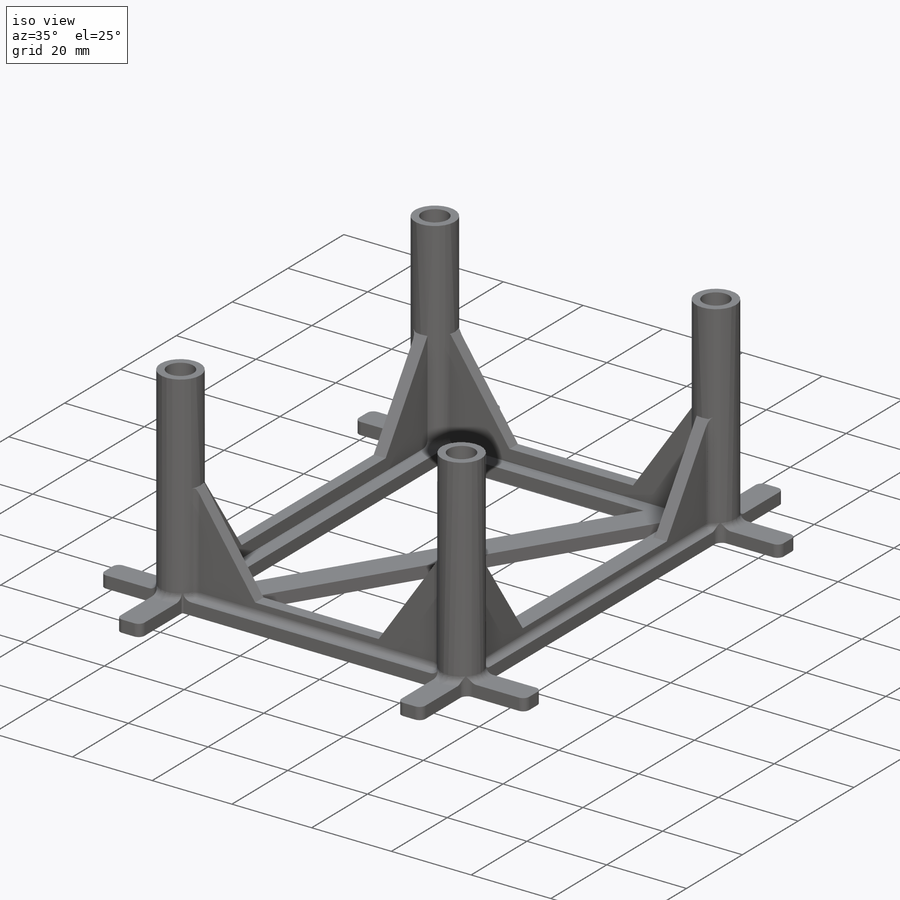
[diagram: iso view]
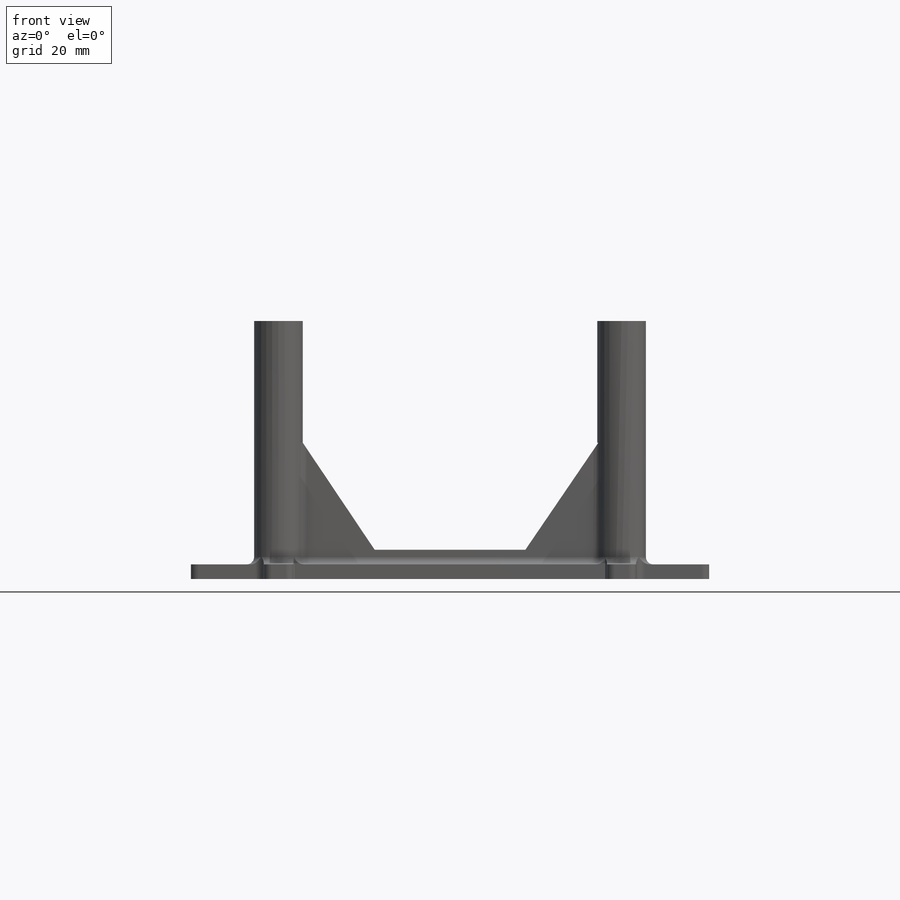
[diagram: front view]
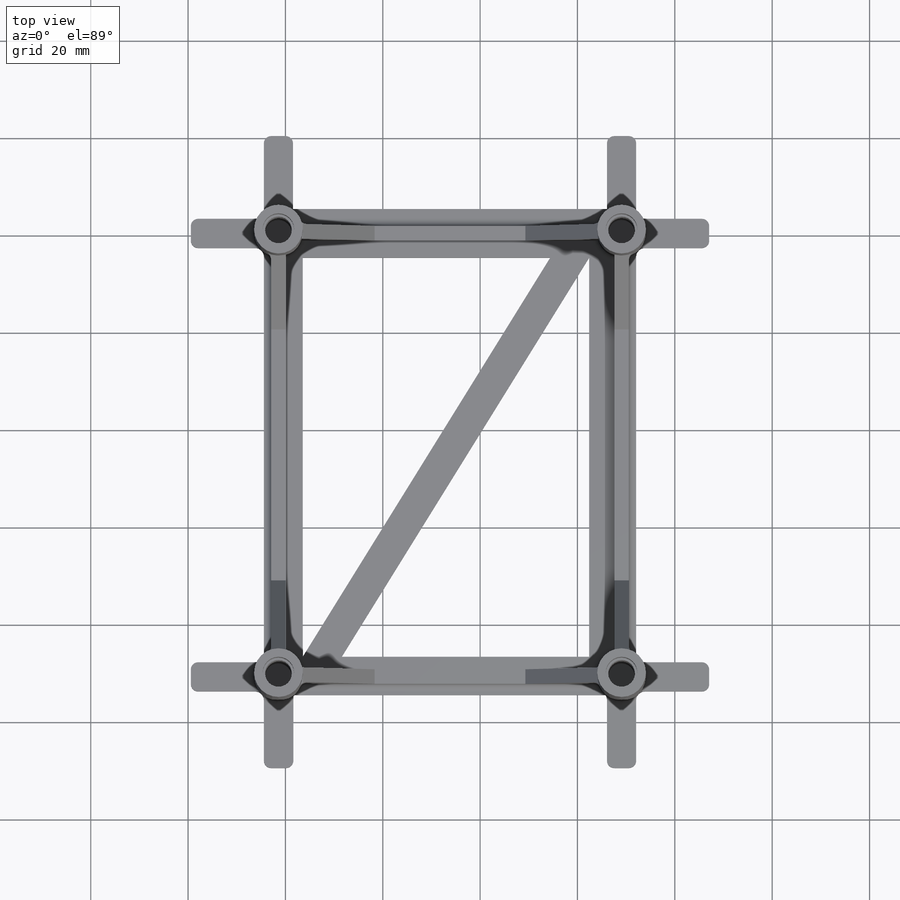
[diagram: top view]
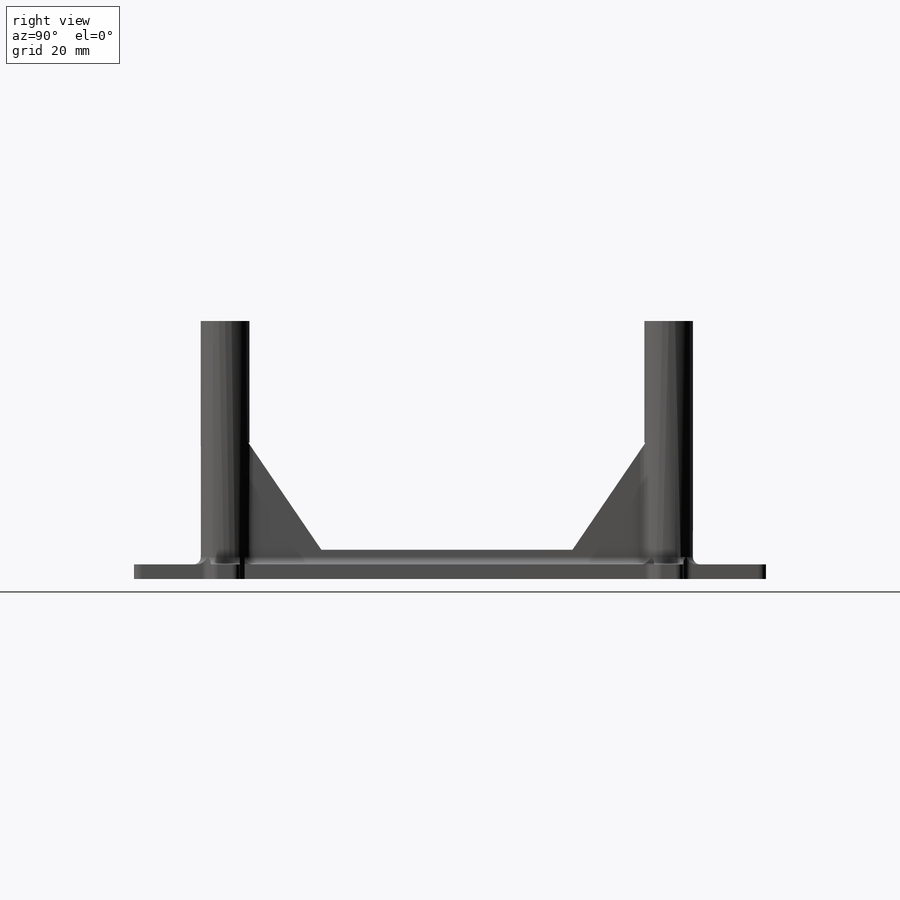
[diagram: right view]
SOLIDWORKS PART (.sldprt)
format: sldprt  version: not decoded by parser v0  size: 855,552 bytes
history: native  units: mm
features: sketch x21, extrude x11, cut_extrude x6, fillet x4, plane x3, sweep x2, material x1 (+9 scaffold rows collapsed)
feature tree (57):
  scaffold x9  (default folders/planes/origin — collapsed)
  material  "材质 <未指定>"
  plane  "前视基准面"
  plane  "上视基准面"
  plane  "右视基准面"
  sketch  "草图1"  dims[c1.D1=76.5mm c1.D2=10.0mm c1.D3=82.0mm c1.D4=76.5mm c1.D5=7.85mm c2.D3=82.0mm c2.D6=10.0mm c3.D3=8.0mm c3.D6=8.0mm c3.D7=8.0mm]
  extrude  "凸台-拉伸3"  Depth=3mm
  sketch  "草图2"  dims[c1.D4=10.0mm c1.D2=~10.391442mm c1.D1=2.0mm c2.D2=3.0mm c2.D3=3.0mm c2.D1=3.0mm]
  extrude  "凸台-拉伸4"  Depth=50mm
  sketch  "草图3"
  extrude  "凸台-拉伸5"  Depth=53mm
  sketch  "草图4"  dims[D1=10.0mm]
  cut_extrude  "切除-拉伸1"  Depth=50mm
  sketch  "草图5"
  extrude  "凸台-拉伸6"  Depth=53mm
  sketch  "草图6"  dims[D3=10.0mm D6=10.0mm D1=3.0mm D2=3.725mm D4=3.0mm D5=3.725mm]
  extrude  "凸台-拉伸7"  Depth=50mm
  sketch  "草图7"
  extrude  "凸台-拉伸8"  Depth=53mm
  sketch  "草图8"
  extrude  "凸台-拉伸9"  Depth=53mm
  sketch  "草图9"  dims[D1=1.5mm D2=1.5mm D3=1.5mm D4=15.0mm]
  extrude  "凸台-拉伸10"  Depth=25mm
  sketch  "草图10"  dims[c1.D1=1.5mm c1.D2=1.5mm c1.D3=1.5mm c1.D4=68.0mm c1.D5=1.5mm c1.D6=1.5mm c1.D7=1.5mm c1.D8=15.0mm c1.D9=1.5mm c1.D10=1.5mm c1.D11=70.5mm c2.D5=1.5mm c2.D6=1.5mm c2.D7=87.0mm]
  extrude  "凸台-拉伸11"  Depth=25mm
  sketch  "草图11"
  extrude  "凸台-拉伸12"  Depth=75mm
  sketch  "草图12"  dims[c1.D1=15.0mm c1.D2=15.0mm c1.D3=25.0mm c2.D1=15.0mm c2.D2=15.0mm c2.D3=22.0mm]
  sketch  "草图13"
  sweep  "切除-扫描3"
  sketch  "草图16"  dims[D1=15.0mm D2=15.0mm D3=22.0mm]
  sketch  "草图17"
  sweep  "切除-扫描4"
  sketch  "草图18"  dims[c1.D1=3.0mm c1.D2=3.0mm c1.D3=3.0mm c1.D4=3.0mm c1.D5=15.0mm c1.D6=15.0mm c1.D7=3.0mm c1.D8=3.0mm c1.D9=3.0mm c1.D10=3.0mm c1.D11=15.0mm c1.D12=15.0mm c1.D13=3.0mm c1.D14=3.0mm c1.D15=3.0mm c1.D16=3.0mm c1.D17=15.0mm c1.D18=~141.375795mm c2.D18=90.0deg c3.D18=15.0mm c3.D19=3.0mm c3.D20=3.0mm c3.D21=3.0mm c3.D22=3.0mm c3.D23=15.0mm c3.D24=15.0mm]
  extrude  "凸台-拉伸15"  Depth=3mm
  fillet  "圆角1"  Radius=1.5mm
  fillet  "圆角2"  Radius=1.5mm
  fillet  "圆角3"  Radius=1.5mm
  fillet  "圆角4"  Radius=1.5mm
  sketch  "草图19"  dims[D1=6.5mm D2=6.5mm D3=6.5mm D4=6.5mm]
  cut_extrude  "切除-拉伸2"  Depth=10mm
  sketch  "草图20"  dims[D1=5.5mm]
  cut_extrude  "切除-拉伸5"  Depth=40mm
  sketch  "草图22"  dims[D1=5.5mm]
  cut_extrude  "切除-拉伸6"  Depth=40mm
  sketch  "草图23"  dims[D1=5.5mm]
  cut_extrude  "切除-拉伸7"  Depth=40mm
  sketch  "草图24"  dims[D1=5.5mm]
  cut_extrude  "切除-拉伸8"  Depth=40mm
decode coverage: 35 of 44 modeling features carry decoded parameters
note: ~ marks probable driven/reference dimensions
note: suppression state not decoded; provenance and decode notes live in map.json
